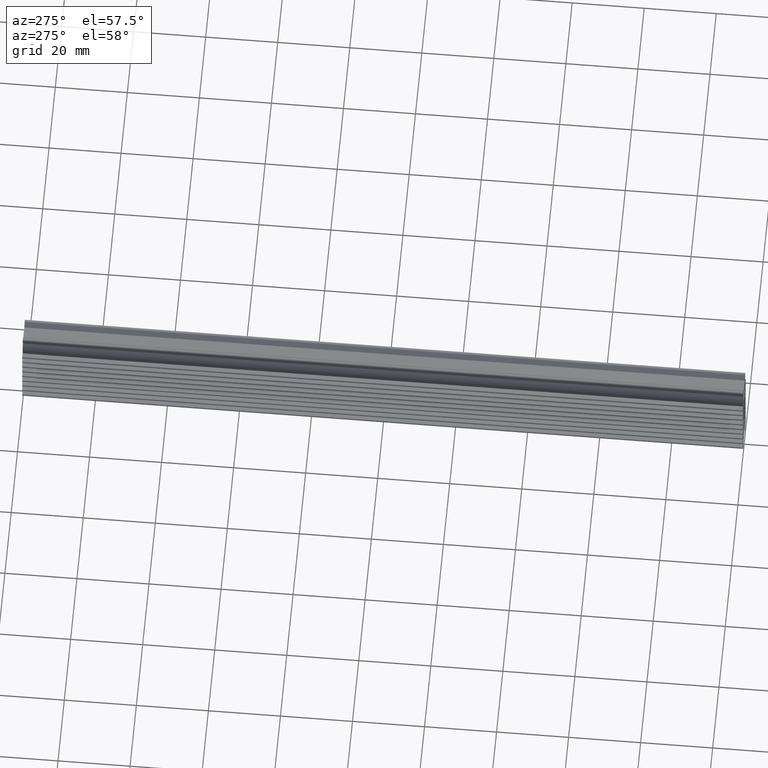
[diagram: clean part render]
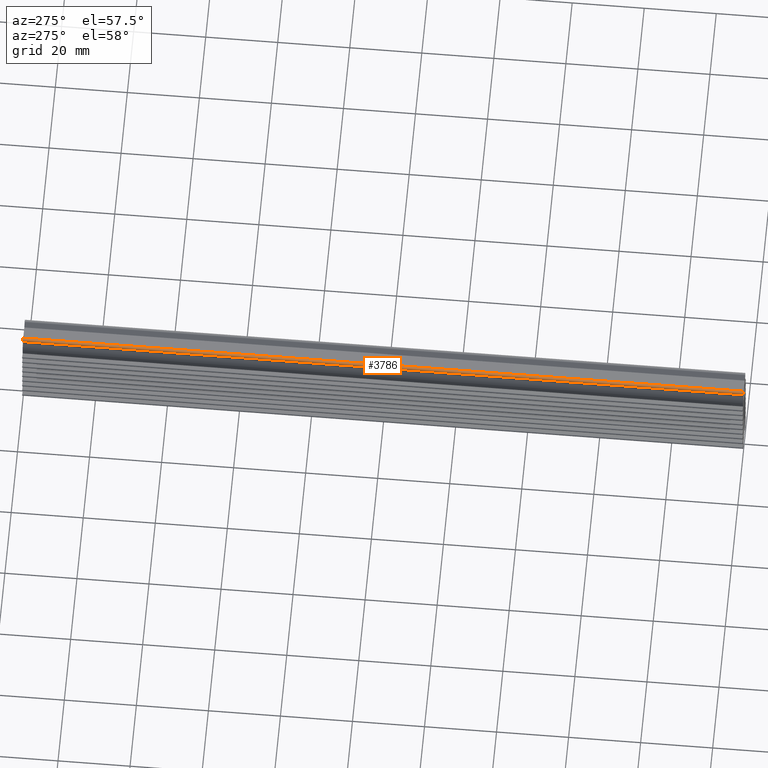
[diagram: same view with one face highlighted and labeled with its STEP entity id]
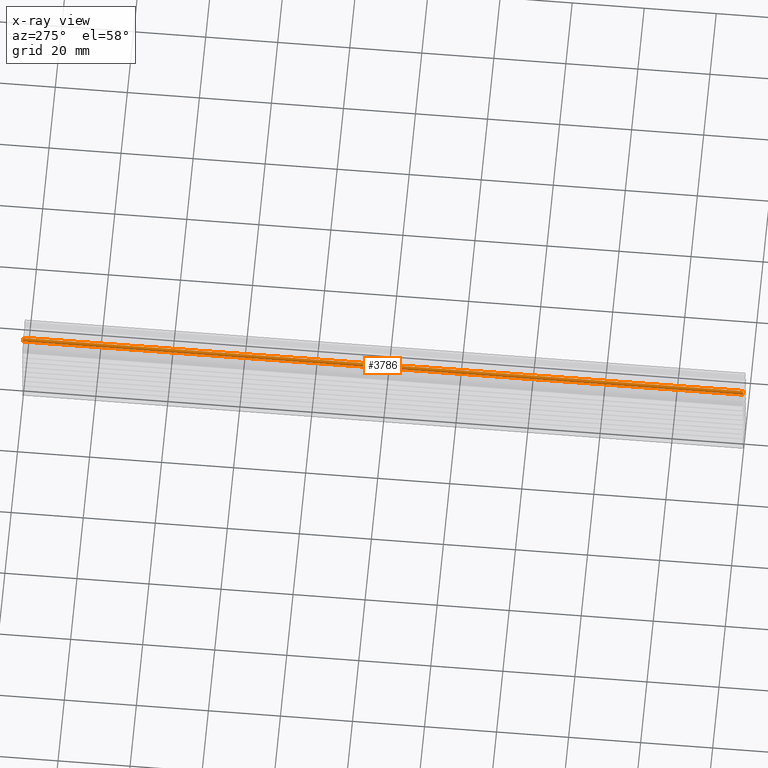
[diagram: x-ray of the same camera — body ghosted, the highlighted face saturated]
A machine part, auxiliary view. The second image highlights one B-rep face of the part: STEP entity #3786.
The next image is the same camera in x-ray: the body ghosted, the highlighted face saturated — about 0% of this face is hidden behind the body in this view.
In plain terms, the highlighted face is a freeform B-spline surface patch.
Its self-contained STEP definition (entity closure, byte-faithful):
#65=CARTESIAN_POINT('',(-2.607942751445550,0.0,1.210308095053846));
#66=VERTEX_POINT('',#65);
#72=CARTESIAN_POINT('',(-3.482962913144495,0.0,0.770590477448715));
#73=VERTEX_POINT('',#72);
#74=CARTESIAN_POINT('',(-2.607942751445550,0.0,1.210308095053846));
#75=CARTESIAN_POINT('',(-2.860660747035028,0.0,1.529603413449483));
#76=CARTESIAN_POINT('',(-3.224508030528344,0.0,1.346761842851687));
#77=CARTESIAN_POINT('',(-3.588355314021661,0.0,1.163920272253890));
#78=CARTESIAN_POINT('',(-3.482962913144504,0.0,0.770590477448712));
#86=(BOUNDED_CURVE()B_SPLINE_CURVE(2,(#74,#75,#76,#77,#78),.UNSPECIFIED.,.F.,.U.)B_SPLINE_CURVE_WITH_KNOTS((3,2,3),(0.0,0.500000000000000,1.0),.UNSPECIFIED.)CURVE()GEOMETRIC_REPRESENTATION_ITEM()RATIONAL_B_SPLINE_CURVE((1.0,0.775388696939473,1.0,0.775388696939473,1.0))REPRESENTATION_ITEM(''));
#87=EDGE_CURVE('',#66,#73,#86,.T.);
#1867=CARTESIAN_POINT('',(-3.482962913144495,200.0,0.770590477448715));
#1868=VERTEX_POINT('',#1867);
#1874=CARTESIAN_POINT('',(-2.607942751445550,200.0,1.210308095053846));
#1875=VERTEX_POINT('',#1874);
#1876=CARTESIAN_POINT('',(-2.607942751445609,200.0,1.210308095053800));
#1877=CARTESIAN_POINT('',(-2.860660747035028,199.999999999999970,1.529603413449483));
#1878=CARTESIAN_POINT('',(-3.224508030528344,200.0,1.346761842851687));
#1879=CARTESIAN_POINT('',(-3.588355314021661,199.999999999999970,1.163920272253890));
#1880=CARTESIAN_POINT('',(-3.482962913144504,200.0,0.770590477448712));
#1888=(BOUNDED_CURVE()B_SPLINE_CURVE(2,(#1876,#1877,#1878,#1879,#1880),.UNSPECIFIED.,.F.,.U.)B_SPLINE_CURVE_WITH_KNOTS((3,2,3),(0.0,0.500000000000000,1.0),.UNSPECIFIED.)CURVE()GEOMETRIC_REPRESENTATION_ITEM()RATIONAL_B_SPLINE_CURVE((1.0,0.775388696939473,1.0,0.775388696939473,1.0))REPRESENTATION_ITEM(''));
#1889=EDGE_CURVE('',#1875,#1868,#1888,.T.);
#3748=CARTESIAN_POINT('',(-3.482962913144495,200.0,0.770590477448715));
#3749=CARTESIAN_POINT('',(-3.482962913144495,0.0,0.770590477448715));
#3750=QUASI_UNIFORM_CURVE('',1,(#3748,#3749),.UNSPECIFIED.,.F.,.U.);
#3751=EDGE_CURVE('',#1868,#73,#3750,.T.);
#3758=CARTESIAN_POINT('',(-3.478505249209407,205.0,0.754973359416202));
#3759=CARTESIAN_POINT('',(-3.478505249209407,-5.125000000000000,0.754973359416202));
#3760=CARTESIAN_POINT('',(-3.603468197549655,205.000000000000030,1.167279860461793));
#3761=CARTESIAN_POINT('',(-3.603468197549655,-5.125000000000001,1.167279860461793));
#3762=CARTESIAN_POINT('',(-3.214161227255511,205.0,1.351812979827234));
#3763=CARTESIAN_POINT('',(-3.214161227255511,-5.125000000000000,1.351812979827234));
#3764=CARTESIAN_POINT('',(-2.824854256961367,205.000000000000030,1.536346099192675));
#3765=CARTESIAN_POINT('',(-2.824854256961367,-5.125000000000001,1.536346099192675));
#3766=CARTESIAN_POINT('',(-2.584804840565457,205.0,1.178591061561715));
#3767=CARTESIAN_POINT('',(-2.584804840565457,-5.125000000000000,1.178591061561715));
#3775=(BOUNDED_SURFACE()B_SPLINE_SURFACE(1,2,((#3758,#3760,#3762,#3764,#3766),(#3759,#3761,#3763,#3765,#3767)),.UNSPECIFIED.,.F.,.F.,.U.)B_SPLINE_SURFACE_WITH_KNOTS((2,2),(3,2,3),(0.0,210.125000000000000),(0.0,1.0,2.0),.UNSPECIFIED.)GEOMETRIC_REPRESENTATION_ITEM()RATIONAL_B_SPLINE_SURFACE(((1.0,0.757564984384050,1.0,0.757564984384050,1.0),(1.0,0.757564984384050,1.0,0.757564984384050,1.0)))REPRESENTATION_ITEM('')SURFACE());
#3776=ORIENTED_EDGE('',*,*,#87,.F.);
#3777=CARTESIAN_POINT('',(-2.607942751445550,200.0,1.210308095053846));
#3778=CARTESIAN_POINT('',(-2.607942751445550,0.0,1.210308095053846));
#3779=QUASI_UNIFORM_CURVE('',1,(#3777,#3778),.UNSPECIFIED.,.F.,.U.);
#3780=EDGE_CURVE('',#1875,#66,#3779,.T.);
#3781=ORIENTED_EDGE('',*,*,#3780,.F.);
#3782=ORIENTED_EDGE('',*,*,#1889,.T.);
#3783=ORIENTED_EDGE('',*,*,#3751,.T.);
#3784=EDGE_LOOP('',(#3776,#3781,#3782,#3783));
#3785=FACE_OUTER_BOUND('',#3784,.T.);
#3786=ADVANCED_FACE('',(#3785),#3775,.T.);